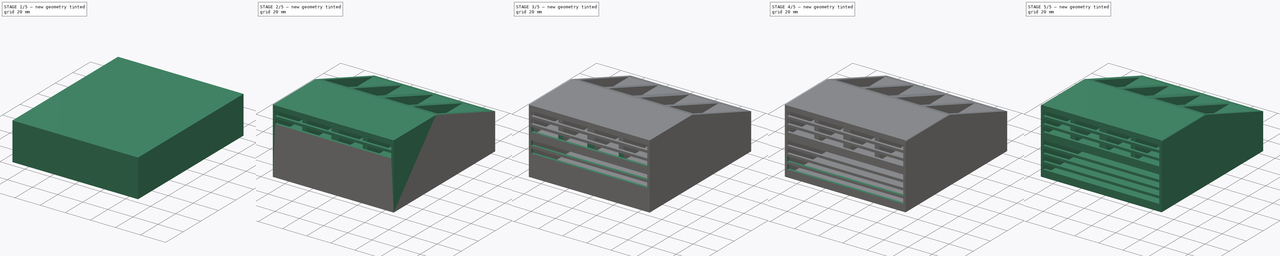
[diagram: build sequence overview — one tinted view per stage of 5, left to right]
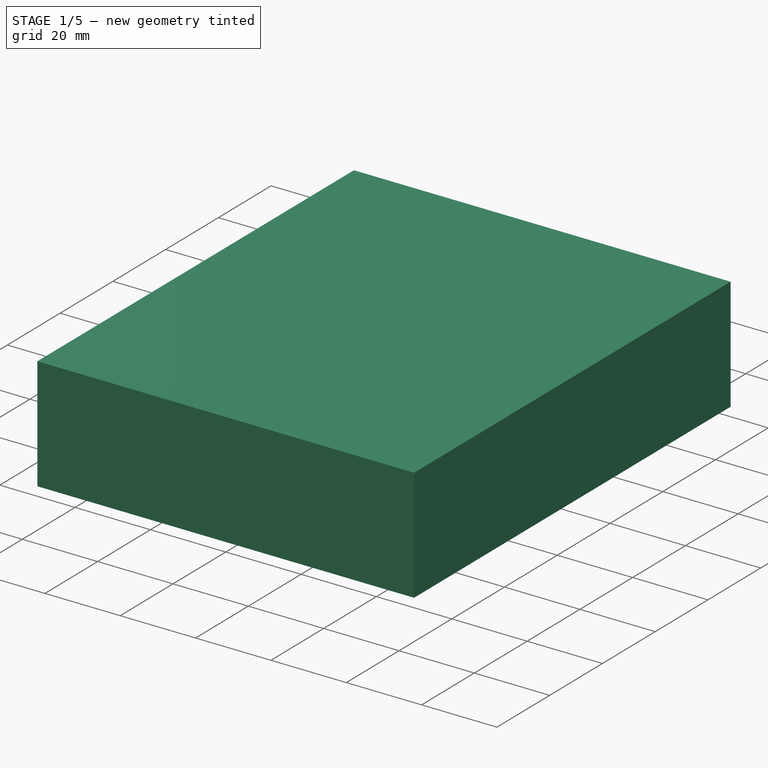
[diagram: stage 1 of 5 — iso view after this stage's code; geometry added in this stage tinted green]
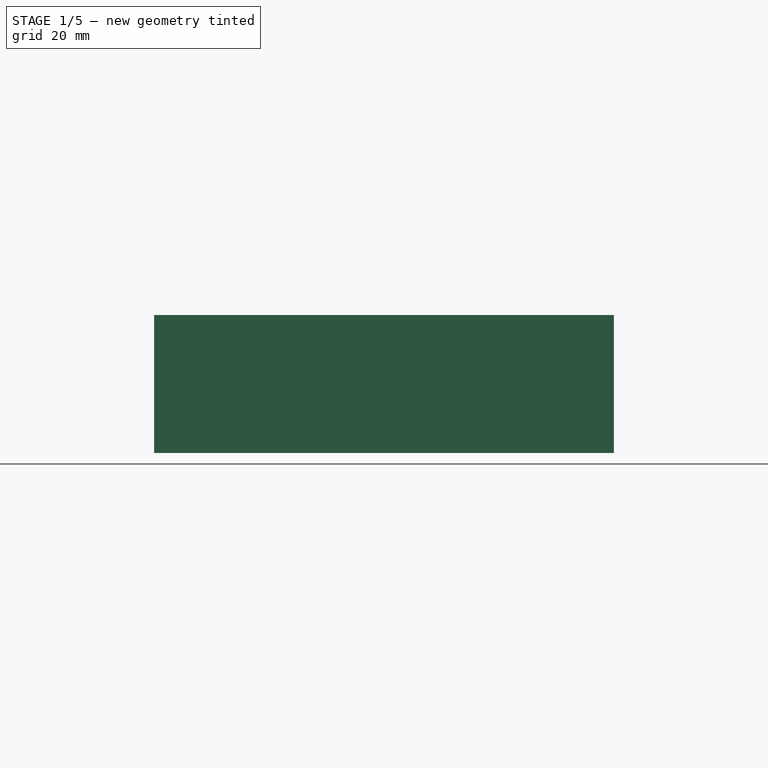
[diagram: stage 1 of 5 — front view after this stage's code; geometry added in this stage tinted green]
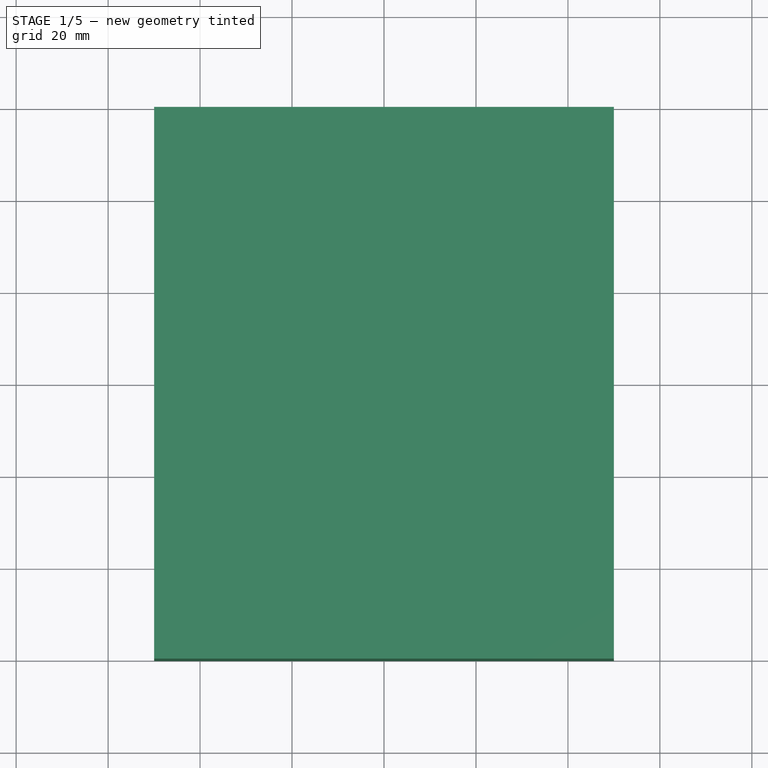
[diagram: stage 1 of 5 — top view after this stage's code; geometry added in this stage tinted green]
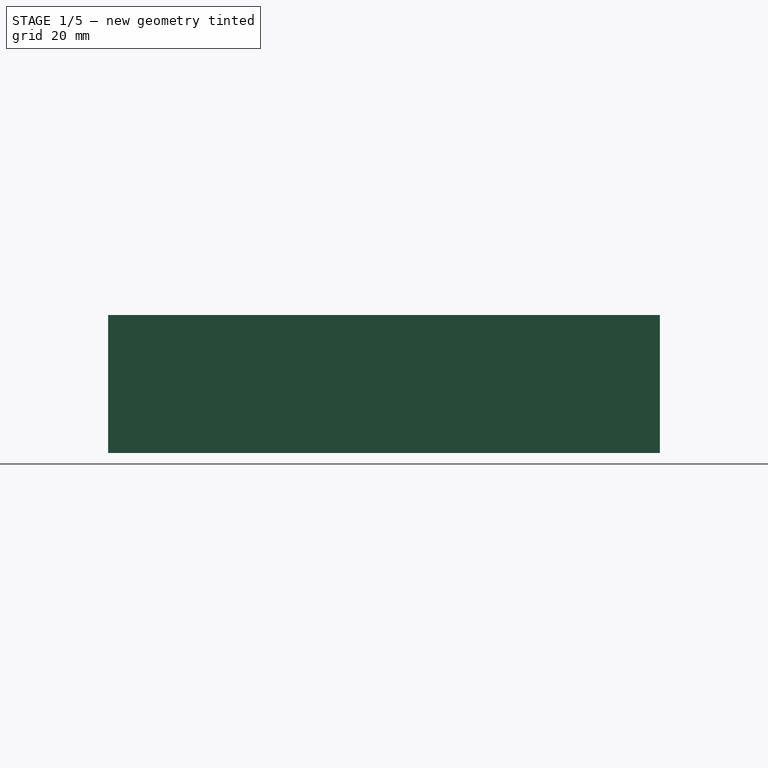
[diagram: stage 1 of 5 — right view after this stage's code; geometry added in this stage tinted green]
FCSTD DOCUMENT  (FreeCAD 0.19R24291 (Git))
Label: bathroom_box2
License: All rights reserved
LicenseURL: http://en.wikipedia.org/wiki/All_rights_reserved
objects: Sketcher::SketchObject×12, PartDesign::Pocket×10, PartDesign::Fillet×3, PartDesign::Pad×2, PartDesign::Chamfer×2, PartDesign::Body×1
note: 47 computed .brp shape members not serialized (recipe doc carries the construction recipe); baked Part::Feature solids carry a one-line shape summary decoded from their .brp

FEATURE [Sketcher::SketchObject] Sketch
  FullyConstrained = true
  MapMode = 5
  Support = -> [XY_Plane]
  sketch-geometry (4):
    g0: LineSegment StartX=-50 StartY=60 StartZ=0 EndX=50 EndY=60 EndZ=0
    g1: LineSegment StartX=50 StartY=60 StartZ=0 EndX=50 EndY=-60 EndZ=0
    g2: LineSegment StartX=50 StartY=-60 StartZ=0 EndX=-50 EndY=-60 EndZ=0
    g3: LineSegment StartX=-50 StartY=-60 StartZ=0 EndX=-50 EndY=60 EndZ=0
  constraints (10):
    c: Coincident(g0,g1)
    c: Coincident(g1,g2)
    c: Coincident(g2,g3)
    c: Coincident(g3,g0)
    c: Horizontal(g2)
    c: Vertical(g3)
    c: DistanceY(g1,g1) = 120
    c: DistanceX(g0,g0) = 100
    c: Symmetric(g1,g0,g-1)
    c: Symmetric(g0,g0,g-2)
FEATURE [PartDesign::Pad] Pad  label="Pad_main"
  Direction = (1,1,1)
  Length = 30
  Length2 = 100
  Profile = -> Sketch
  Refine = true
  Type = 0
FEATURE [Sketcher::SketchObject] Sketch001
  AttachmentOffset = pos=(0,0,58) rot=(0,0,1;0rad)
  ExternalGeometry = -> [Pad]
  FullyConstrained = true
  MapMode = 5
  Placement = pos=(0,-58,-1.29e-14) rot=(1,0,0;1.5708rad)
  Support = -> [XZ_Plane]
  sketch-geometry (4):
    g0: LineSegment StartX=-49 StartY=29 StartZ=0 EndX=49 EndY=29 EndZ=0
    g1: LineSegment StartX=49 StartY=29 StartZ=0 EndX=49 EndY=1 EndZ=0
    g2: LineSegment StartX=49 StartY=1 StartZ=0 EndX=-49 EndY=1 EndZ=0
    g3: LineSegment StartX=-49 StartY=1 StartZ=0 EndX=-49 EndY=29 EndZ=0
  constraints (11):
    c: Coincident(g0,g1)
    c: Coincident(g1,g2)
    c: Coincident(g2,g3)
    c: Coincident(g3,g0)
    c: Horizontal(g2)
    c: Vertical(g1)
    c: Vertical(g3)
    c: Symmetric(g0,g0,g-2)
    c: DistanceY(g0,g-3) = 1
    c: DistanceX(g0,g-3) = 1
    c: DistanceY(g-4,g1) = 1
FEATURE [PartDesign::Pocket] Pocket  label="Pocket_main"
  BaseFeature = -> Pad
  Length = 118
  Length2 = 100
  Profile = -> Sketch001
  Refine = true
  Type = 0
FEATURE [Sketcher::SketchObject] Sketch010
  FullyConstrained = true
  MapMode = 5
  Support = -> [XY_Plane]
  sketch-geometry (4):
    g0: LineSegment StartX=-3.5 StartY=46.0622 StartZ=0 EndX=3.5 EndY=46.0622 EndZ=0
    g1: LineSegment StartX=3.5 StartY=46.0622 StartZ=0 EndX=3.5 EndY=36.0622 EndZ=0
    g2: ArcOfCircle CenterX=0 CenterY=30 CenterZ=0 NormalX=0 NormalY=0 NormalZ=1 AngleXU=0 Radius=7 StartAngle=2.0944 EndAngle=7.33038
    g3: LineSegment StartX=-3.5 StartY=36.0622 StartZ=0 EndX=-3.5 EndY=46.0622 EndZ=0
  constraints (12):
    c: Coincident(g0,g1)
    c: Vertical(g1)
    c: Coincident(g2,g3)
    c: Coincident(g3,g0)
    c: Vertical(g3)
    c: Symmetric(g0,g0,g-2)
    c: DistanceX(g0,g0) = 7
    c: Coincident(g2,g1)
    c: PointOnObject(g2,g-2)
    c: Radius(g2) = 7
    c: DistanceY(g1,g0) = 10
    c: DistanceY(g-1,g2) = 30
FEATURE [PartDesign::Pocket] Pocket006  label="Pocket_hanger"
  BaseFeature = -> Pocket
  Length = 2
  Length2 = 100
  Profile = -> Sketch010
  Refine = true
  Reversed = true
  Type = 0
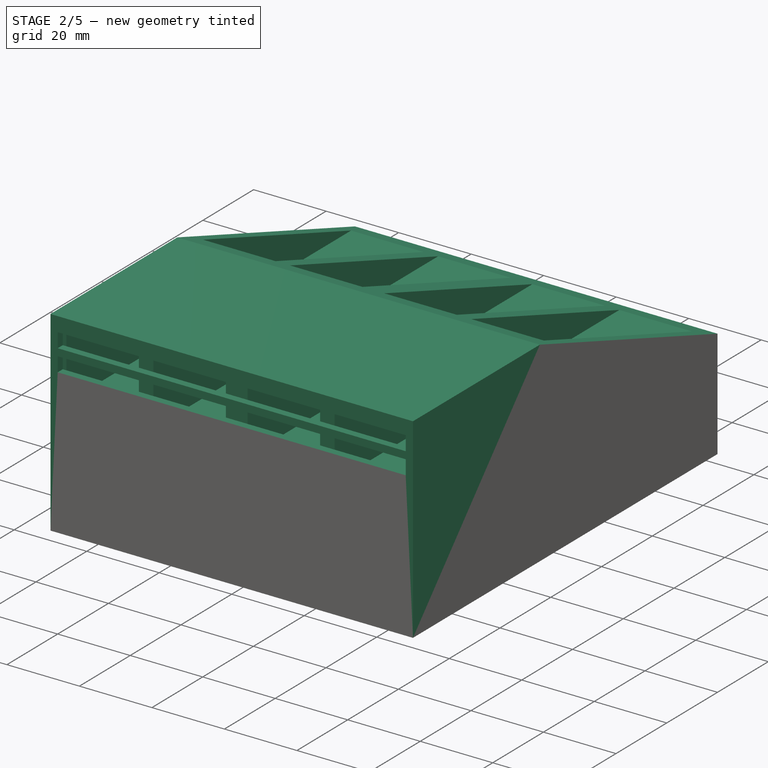
[diagram: stage 2 of 5 — iso view after this stage's code; geometry added in this stage tinted green]
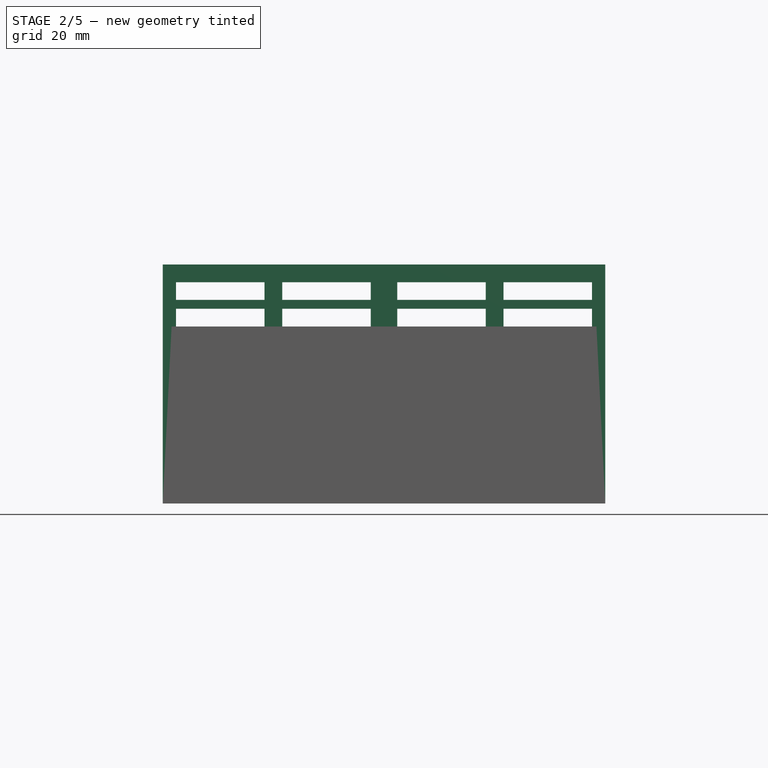
[diagram: stage 2 of 5 — front view after this stage's code; geometry added in this stage tinted green]
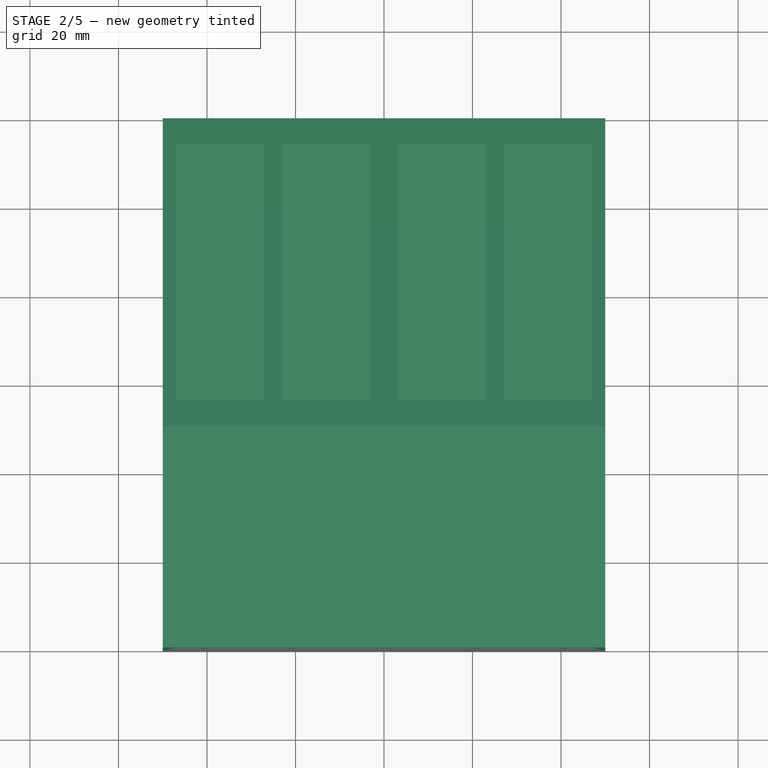
[diagram: stage 2 of 5 — top view after this stage's code; geometry added in this stage tinted green]
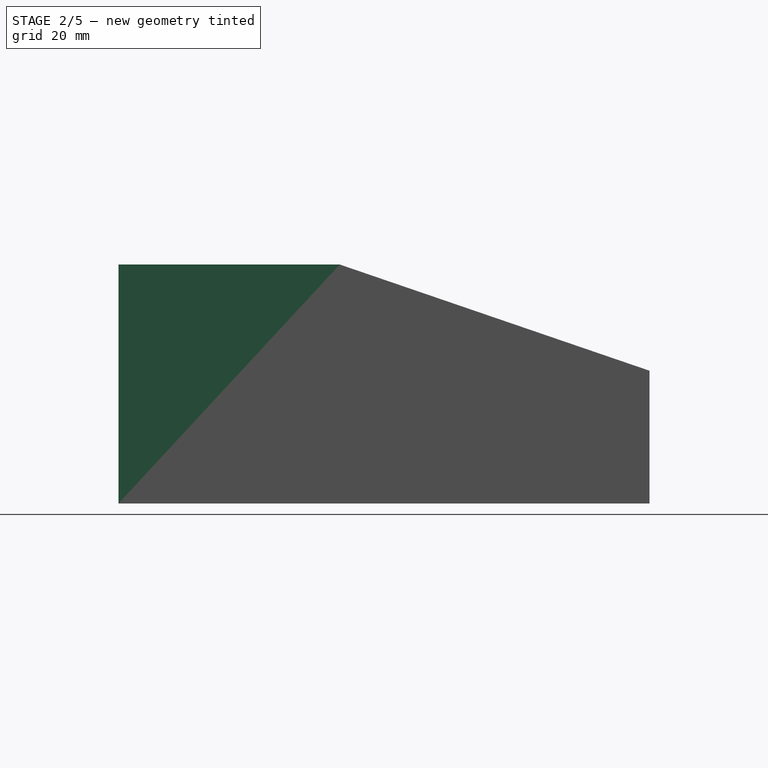
[diagram: stage 2 of 5 — right view after this stage's code; geometry added in this stage tinted green]
FEATURE [Sketcher::SketchObject] Sketch011
  AttachmentOffset = pos=(0,0,50) rot=(0,0,1;0rad)
  ExternalGeometry = -> [Pocket006]
  FullyConstrained = false
  MapMode = 5
  Placement = pos=(50,-1.11e-14,1.11e-14) rot=(0.57735,0.57735,0.57735;2.0944rad)
  Support = -> [YZ_Plane]
  sketch-geometry (4):
    g0: LineSegment StartX=60 StartY=30 StartZ=0 EndX=-60 EndY=30 EndZ=0
    g1: LineSegment StartX=-60 StartY=30 StartZ=0 EndX=-60 EndY=54 EndZ=0
    g2: LineSegment StartX=-60 StartY=54 StartZ=0 EndX=-10 EndY=54 EndZ=0
    g3: LineSegment StartX=-10 StartY=54 StartZ=0 EndX=60 EndY=30 EndZ=0
  constraints (8):
    c: Coincident(g0,g1)
    c: Vertical(g1)
    c: Coincident(g1,g2)
    c: Horizontal(g2)
    c: Coincident(g2,g3)
    c: Coincident(g3,g0)
    c: DistanceY(g1,g1) = 24
    c: DistanceX(g2,g2) = 50
FEATURE [PartDesign::Pad] Pad001  label="Pad_front"
  BaseFeature = -> Pocket006
  Direction = (1,1,1)
  Length = 100
  Length2 = 100
  Profile = -> Sketch011
  Refine = true
  Reversed = true
  Type = 0
FEATURE [Sketcher::SketchObject] Sketch012
  AttachmentOffset = pos=(0,0,58) rot=(0,0,1;0rad)
  ExternalGeometry = -> [Pad001]
  FullyConstrained = false
  MapMode = 5
  Placement = pos=(0,-58,-1.29e-14) rot=(1,0,0;1.5708rad)
  Support = -> [XZ_Plane]
  sketch-geometry (16):
    g0: LineSegment StartX=47 StartY=52 StartZ=0 EndX=27 EndY=52 EndZ=0
    g1: LineSegment StartX=27 StartY=52 StartZ=0 EndX=27 EndY=32 EndZ=0
    g2: LineSegment StartX=27 StartY=32 StartZ=0 EndX=47 EndY=32 EndZ=0
    g3: LineSegment StartX=47 StartY=32 StartZ=0 EndX=47 EndY=52 EndZ=0
    g4: LineSegment StartX=23 StartY=52 StartZ=0 EndX=3 EndY=52 EndZ=0
    g5: LineSegment StartX=3 StartY=52 StartZ=0 EndX=3 EndY=32 EndZ=0
    g6: LineSegment StartX=3 StartY=32 StartZ=0 EndX=23 EndY=32 EndZ=0
    g7: LineSegment StartX=23 StartY=32 StartZ=0 EndX=23 EndY=52 EndZ=0
    g8: LineSegment StartX=-23 StartY=52 StartZ=0 EndX=-3 EndY=52 EndZ=0
    g9: LineSegment StartX=-3 StartY=52 StartZ=0 EndX=-3 EndY=32 EndZ=0
    g10: LineSegment StartX=-3 StartY=32 StartZ=0 EndX=-23 EndY=32 EndZ=0
    g11: LineSegment StartX=-23 StartY=32 StartZ=0 EndX=-23 EndY=52 EndZ=0
    g12: LineSegment StartX=-47 StartY=52 StartZ=0 EndX=-27 EndY=52 EndZ=0
    g13: LineSegment StartX=-27 StartY=52 StartZ=0 EndX=-27 EndY=32 EndZ=0
    g14: LineSegment StartX=-27 StartY=32 StartZ=0 EndX=-47 EndY=32 EndZ=0
    g15: LineSegment StartX=-47 StartY=32 StartZ=0 EndX=-47 EndY=52 EndZ=0
  constraints (45):
    c: Coincident(g0,g1)
    c: Coincident(g2,g3)
    c: Coincident(g3,g0)
    c: Horizontal(g0)
    c: Horizontal(g2)
    c: Vertical(g1)
    c: Vertical(g3)
    c: Coincident(g4,g5)
    c: Coincident(g5,g6)
    c: Coincident(g6,g7)
    c: Coincident(g7,g4)
    c: Horizontal(g4)
    c: Horizontal(g6)
    c: Vertical(g5)
    c: Vertical(g7)
    c: Equal(g7,g1)
    c: Equal(g0,g4)
    c: Horizontal(g4,g0)
    c: Coincident(g2,g1)
    c: Coincident(g8,g9)
    c: Coincident(g9,g10)
    c: Coincident(g10,g11)
    c: Coincident(g11,g8)
    c: Horizontal(g8)
    c: Horizontal(g10)
    c: Vertical(g9)
    c: Vertical(g11)
    c: Coincident(g12,g13)
    c: Coincident(g13,g14)
    c: Coincident(g14,g15)
    c: Coincident(g15,g12)
    c: Horizontal(g12)
    c: Horizontal(g14)
    c: Vertical(g13)
    c: Vertical(g15)
    c: Equal(g13,g11)
    c: Equal(g9,g5)
    c: Equal(g10,g14)
    c: Equal(g10,g6)
    c: Horizontal(g8,g4)
    c: Horizontal(g12,g8)
    c: DistanceX(g13,g10) = 4
    c: DistanceX(g6,g1) = 4
    c: DistanceX(g0,g0) = 20
    c: DistanceY(g3,g3) = 20
FEATURE [PartDesign::Pocket] Pocket011  label="Pocket_front"
  BaseFeature = -> Pad001
  Length = 118
  Length2 = 100
  Profile = -> Sketch012
  Refine = true
  Type = 0
FEATURE [Sketcher::SketchObject] Sketch007
  AttachmentOffset = pos=(0,0,60) rot=(0,0,1;0rad)
  ExternalGeometry = -> [Pocket011]
  FullyConstrained = true
  MapMode = 5
  Placement = pos=(0,-60,-1.33e-14) rot=(1,0,0;1.5708rad)
  Support = -> [XZ_Plane]
  sketch-geometry (4):
    g0: LineSegment StartX=-48 StartY=16 StartZ=0 EndX=48 EndY=16 EndZ=0
    g1: LineSegment StartX=48 StartY=16 StartZ=0 EndX=48 EndY=12 EndZ=0
    g2: LineSegment StartX=48 StartY=12 StartZ=0 EndX=-48 EndY=12 EndZ=0
    g3: LineSegment StartX=-48 StartY=12 StartZ=0 EndX=-48 EndY=16 EndZ=0
  constraints (12):
    c: Coincident(g0,g1)
    c: Coincident(g1,g2)
    c: Coincident(g2,g3)
    c: Coincident(g3,g0)
    c: Horizontal(g0)
    c: Horizontal(g2)
    c: Vertical(g1)
    c: Vertical(g3)
    c: DistanceY(g1,g1) = 4
    c: DistanceX(g2,g2) = 96
    c: DistanceY(g-3,g1) = 12
    c: DistanceX(g1,g-3) = 2
FEATURE [Sketcher::SketchObject] Sketch008
  AttachmentOffset = pos=(0,0,60) rot=(0,0,1;0rad)
  ExternalGeometry = -> [Pocket011]
  FullyConstrained = true
  MapMode = 5
  Placement = pos=(0,-60,-1.33e-14) rot=(1,0,0;1.5708rad)
  Support = -> [XZ_Plane]
  sketch-geometry (4):
    g0: LineSegment StartX=-48 StartY=10 StartZ=0 EndX=48 EndY=10 EndZ=0
    g1: LineSegment StartX=48 StartY=10 StartZ=0 EndX=48 EndY=6 EndZ=0
    g2: LineSegment StartX=48 StartY=6 StartZ=0 EndX=-48 EndY=6 EndZ=0
    g3: LineSegment StartX=-48 StartY=6 StartZ=0 EndX=-48 EndY=10 EndZ=0
  constraints (12):
    c: Coincident(g0,g1)
    c: Coincident(g1,g2)
    c: Coincident(g2,g3)
    c: Coincident(g3,g0)
    c: Horizontal(g0)
    c: Horizontal(g2)
    c: Vertical(g1)
    c: Vertical(g3)
    c: DistanceY(g1,g1) = 4
    c: DistanceX(g2,g2) = 96
    c: DistanceY(g-3,g1) = 6
    c: DistanceX(g1,g-3) = 2
FEATURE [Sketcher::SketchObject] Sketch003
  AttachmentOffset = pos=(0,0,60) rot=(0,0,1;0rad)
  ExternalGeometry = -> [Sketch008,Pocket011]
  FullyConstrained = false
  MapMode = 5
  Placement = pos=(0,-60,-1.33e-14) rot=(1,0,0;1.5708rad)
  Support = -> [XZ_Plane]
  sketch-geometry (4):
    g0: LineSegment StartX=-47.9862 StartY=22 StartZ=0 EndX=48.0138 EndY=22 EndZ=0
    g1: LineSegment StartX=48.0138 StartY=22 StartZ=0 EndX=48.0138 EndY=18 EndZ=0
    g2: LineSegment StartX=48.0138 StartY=18 StartZ=0 EndX=-47.9862 EndY=18 EndZ=0
    g3: LineSegment StartX=-47.9862 StartY=18 StartZ=0 EndX=-47.9862 EndY=22 EndZ=0
  constraints (11):
    c: Coincident(g0,g1)
    c: Coincident(g1,g2)
    c: Coincident(g2,g3)
    c: Coincident(g3,g0)
    c: Horizontal(g0)
    c: Horizontal(g2)
    c: Vertical(g1)
    c: Vertical(g3)
    c: DistanceY(g1,g1) = 4
    c: DistanceX(g2,g2) = 96
    c: DistanceY(g-4,g1) = 18
FEATURE [Sketcher::SketchObject] Sketch009
  AttachmentOffset = pos=(0,0,60) rot=(0,0,1;0rad)
  ExternalGeometry = -> [Pocket011]
  FullyConstrained = true
  MapMode = 5
  Placement = pos=(0,-60,-1.33e-14) rot=(1,0,0;1.5708rad)
  Support = -> [XZ_Plane]
  sketch-geometry (4):
    g0: LineSegment StartX=-48 StartY=28 StartZ=0 EndX=48 EndY=28 EndZ=0
    g1: LineSegment StartX=48 StartY=28 StartZ=0 EndX=48 EndY=24 EndZ=0
    g2: LineSegment StartX=48 StartY=24 StartZ=0 EndX=-48 EndY=24 EndZ=0
    g3: LineSegment StartX=-48 StartY=24 StartZ=0 EndX=-48 EndY=28 EndZ=0
  constraints (12):
    c: Coincident(g0,g1)
    c: Coincident(g1,g2)
    c: Coincident(g2,g3)
    c: Coincident(g3,g0)
    c: Horizontal(g0)
    c: Horizontal(g2)
    c: Vertical(g1)
    c: Vertical(g3)
    c: DistanceY(g1,g1) = 4
    c: DistanceX(g2,g2) = 96
    c: DistanceX(g1,g-3) = 2
    c: DistanceY(g-3,g1) = 24
FEATURE [Sketcher::SketchObject] Sketch013
  AttachmentOffset = pos=(0,0,60) rot=(0,0,1;0rad)
  ExternalGeometry = -> [Pocket011]
  FullyConstrained = true
  MapMode = 5
  Placement = pos=(0,-60,-1.33e-14) rot=(1,0,0;1.5708rad)
  Support = -> [XZ_Plane]
  sketch-geometry (4):
    g0: LineSegment StartX=-48 StartY=38 StartZ=0 EndX=48 EndY=38 EndZ=0
    g1: LineSegment StartX=48 StartY=38 StartZ=0 EndX=48 EndY=34 EndZ=0
    g2: LineSegment StartX=48 StartY=34 StartZ=0 EndX=-48 EndY=34 EndZ=0
    g3: LineSegment StartX=-48 StartY=34 StartZ=0 EndX=-48 EndY=38 EndZ=0
  constraints (12):
    c: Coincident(g0,g1)
    c: Coincident(g1,g2)
    c: Coincident(g2,g3)
    c: Coincident(g3,g0)
    c: Horizontal(g0)
    c: Horizontal(g2)
    c: Vertical(g1)
    c: Vertical(g3)
    c: DistanceY(g1,g1) = 4
    c: DistanceX(g2,g2) = 96
    c: DistanceX(g1,g-3) = 2
    c: DistanceY(g-3,g1) = 34
FEATURE [Sketcher::SketchObject] Sketch014
  AttachmentOffset = pos=(0,0,60) rot=(0,0,1;0rad)
  ExternalGeometry = -> [Pocket011]
  FullyConstrained = true
  MapMode = 5
  Placement = pos=(0,-60,-1.33e-14) rot=(1,0,0;1.5708rad)
  Support = -> [XZ_Plane]
  sketch-geometry (4):
    g0: LineSegment StartX=-48 StartY=44 StartZ=0 EndX=48 EndY=44 EndZ=0
    g1: LineSegment StartX=48 StartY=44 StartZ=0 EndX=48 EndY=40 EndZ=0
    g2: LineSegment StartX=48 StartY=40 StartZ=0 EndX=-48 EndY=40 EndZ=0
    g3: LineSegment StartX=-48 StartY=40 StartZ=0 EndX=-48 EndY=44 EndZ=0
  constraints (12):
    c: Coincident(g0,g1)
    c: Coincident(g1,g2)
    c: Coincident(g2,g3)
    c: Coincident(g3,g0)
    c: Horizontal(g0)
    c: Horizontal(g2)
    c: Vertical(g1)
    c: Vertical(g3)
    c: DistanceY(g1,g1) = 4
    c: DistanceX(g2,g2) = 96
    c: DistanceX(g1,g-3) = 2
    c: DistanceY(g-3,g1) = 40
FEATURE [Sketcher::SketchObject] Sketch016
  AttachmentOffset = pos=(0,0,60) rot=(0,0,1;0rad)
  ExternalGeometry = -> [Pocket011]
  FullyConstrained = true
  MapMode = 5
  Placement = pos=(0,-60,-1.33e-14) rot=(1,0,0;1.5708rad)
  Support = -> [XZ_Plane]
  sketch-geometry (4):
    g0: LineSegment StartX=-48 StartY=50 StartZ=0 EndX=48 EndY=50 EndZ=0
    g1: LineSegment StartX=48 StartY=50 StartZ=0 EndX=48 EndY=46 EndZ=0
    g2: LineSegment StartX=48 StartY=46 StartZ=0 EndX=-48 EndY=46 EndZ=0
    g3: LineSegment StartX=-48 StartY=46 StartZ=0 EndX=-48 EndY=50 EndZ=0
  constraints (12):
    c: Coincident(g0,g1)
    c: Coincident(g1,g2)
    c: Coincident(g2,g3)
    c: Coincident(g3,g0)
    c: Horizontal(g0)
    c: Horizontal(g2)
    c: Vertical(g1)
    c: Vertical(g3)
    c: DistanceY(g1,g1) = 4
    c: DistanceX(g2,g2) = 96
    c: DistanceX(g1,g-3) = 2
    c: DistanceY(g-3,g1) = 46
FEATURE [PartDesign::Pocket] Pocket012  label="Pocket_bottom_01"
  BaseFeature = -> Pocket011
  Length = 2
  Length2 = 100
  Profile = -> Sketch016
  Refine = true
  Type = 0
FEATURE [PartDesign::Pocket] Pocket013  label="Pocket_bottom_02"
  BaseFeature = -> Pocket012
  Length = 2
  Length2 = 100
  Profile = -> Sketch014
  Refine = true
  Type = 0
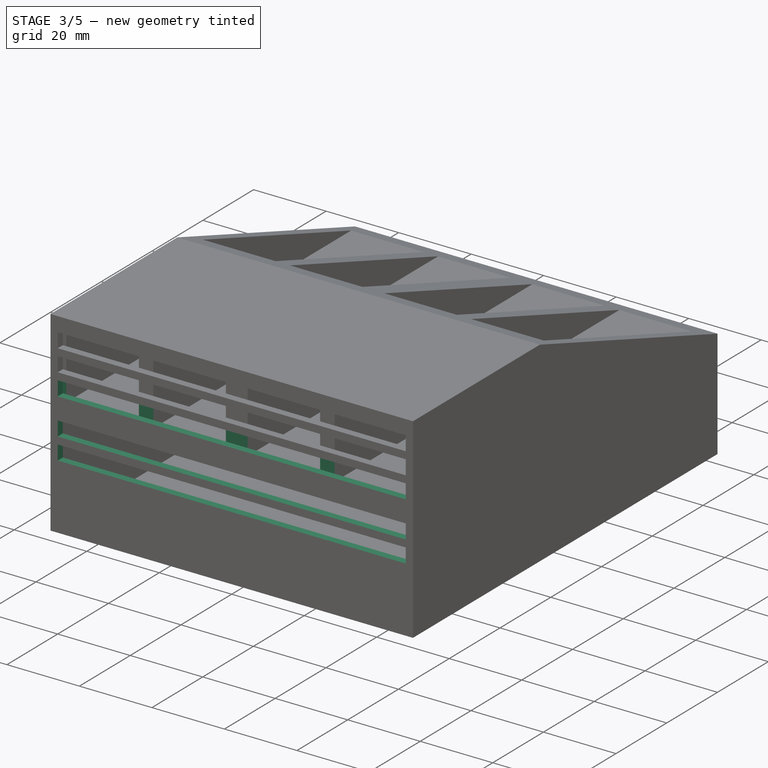
[diagram: stage 3 of 5 — iso view after this stage's code; geometry added in this stage tinted green]
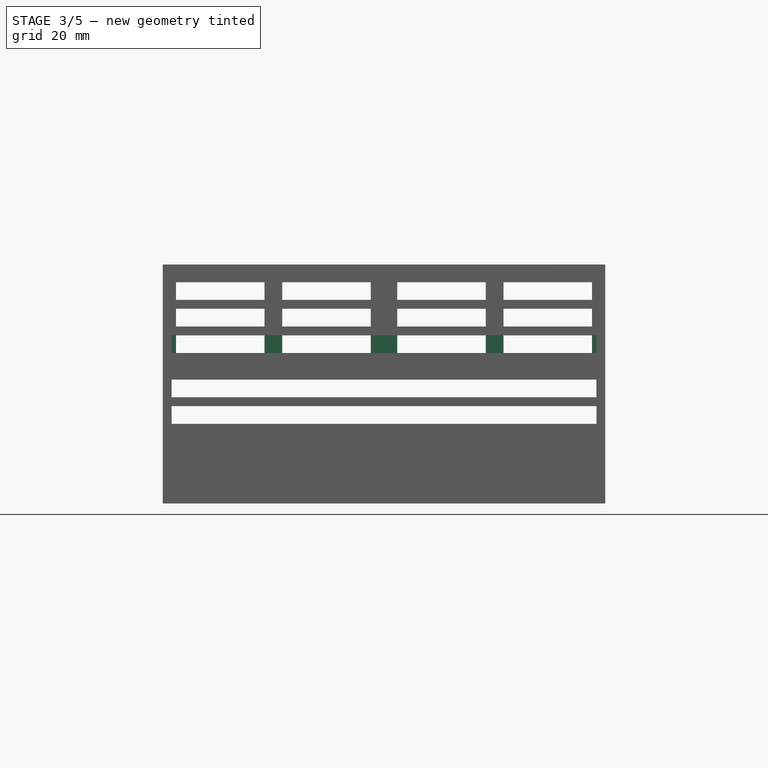
[diagram: stage 3 of 5 — front view after this stage's code; geometry added in this stage tinted green]
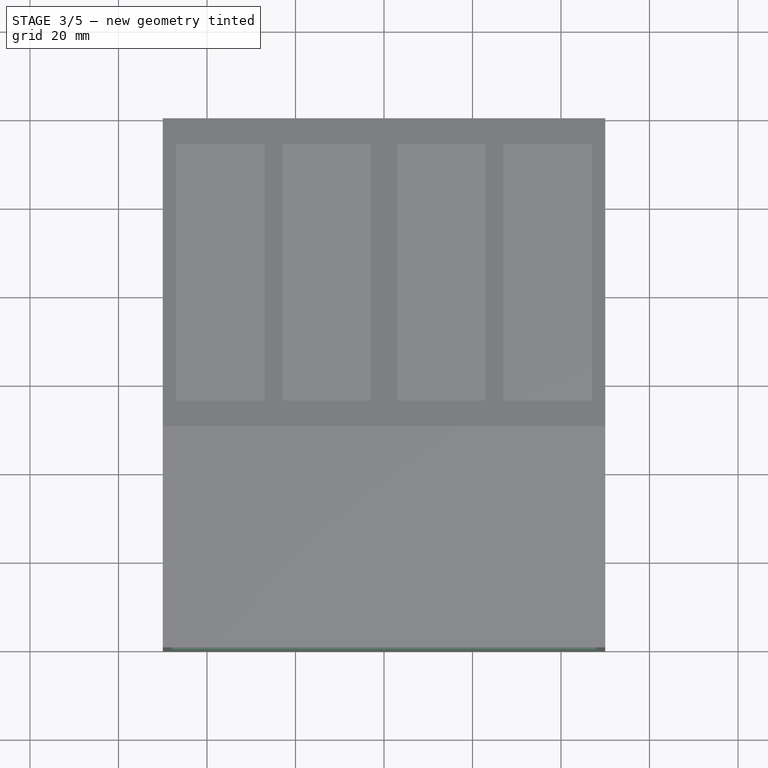
[diagram: stage 3 of 5 — top view after this stage's code; geometry added in this stage tinted green]
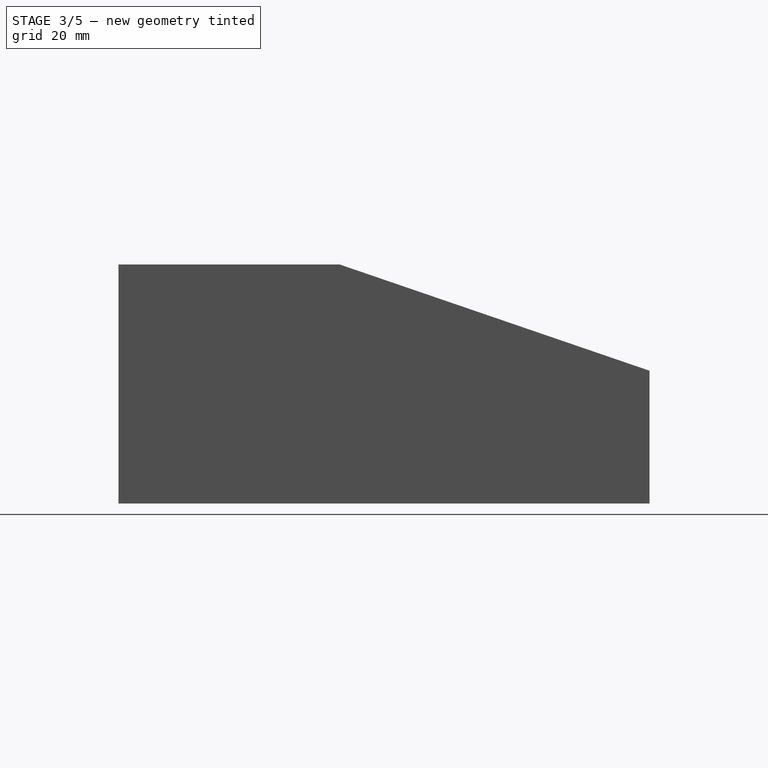
[diagram: stage 3 of 5 — right view after this stage's code; geometry added in this stage tinted green]
FEATURE [PartDesign::Pocket] Pocket014  label="Pocket_bottom_03"
  BaseFeature = -> Pocket013
  Length = 2
  Length2 = 100
  Profile = -> Sketch013
  Refine = true
  Type = 0
FEATURE [PartDesign::Pocket] Pocket015  label="Pocket_bottom_04"
  BaseFeature = -> Pocket014
  Length = 2
  Length2 = 100
  Profile = -> Sketch009
  Refine = true
  Type = 0
FEATURE [PartDesign::Pocket] Pocket016  label="Pocket_bottom_05"
  BaseFeature = -> Pocket015
  Length = 2
  Length2 = 100
  Profile = -> Sketch003
  Refine = true
  Type = 0
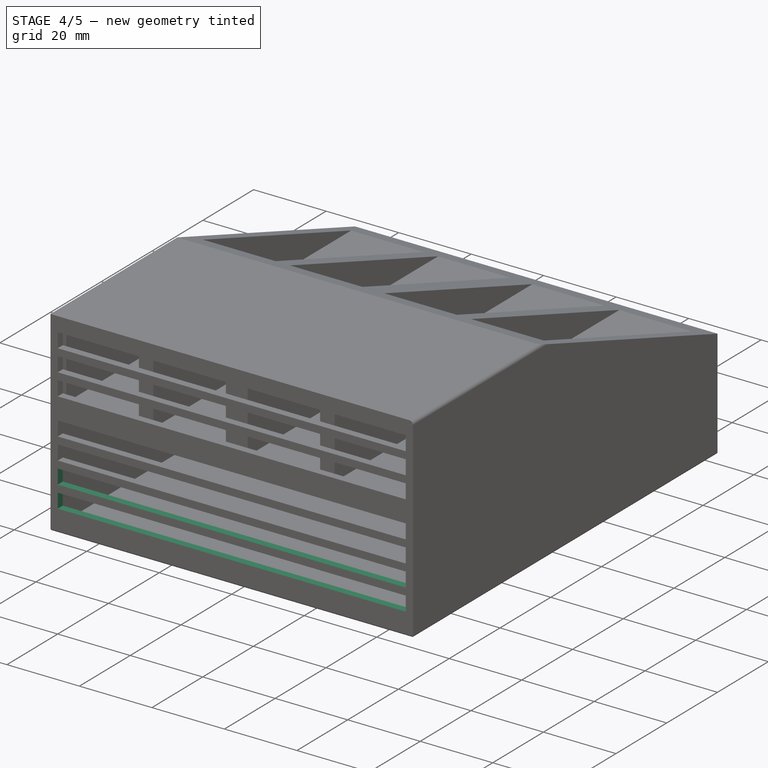
[diagram: stage 4 of 5 — iso view after this stage's code; geometry added in this stage tinted green]
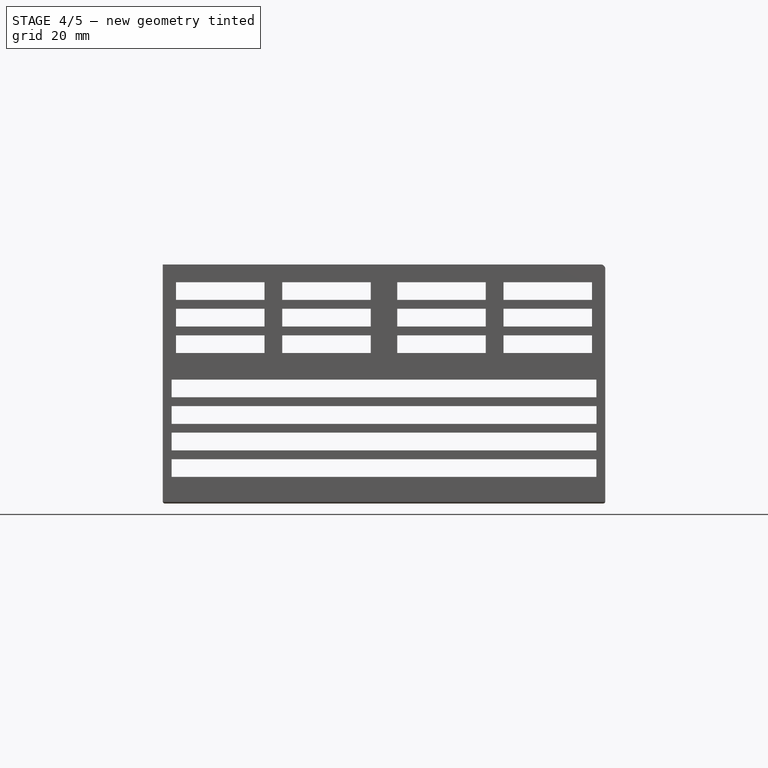
[diagram: stage 4 of 5 — front view after this stage's code; geometry added in this stage tinted green]
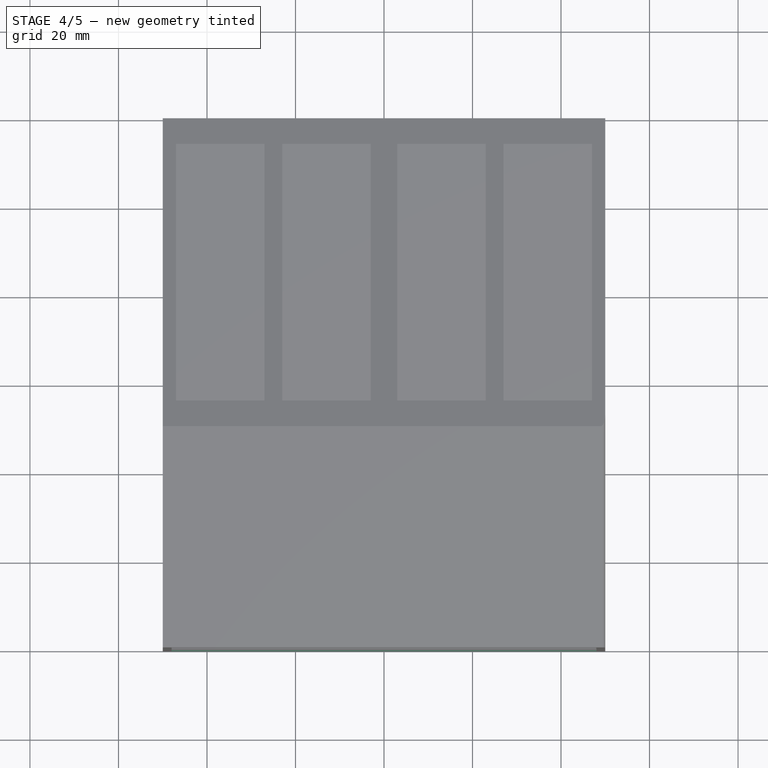
[diagram: stage 4 of 5 — top view after this stage's code; geometry added in this stage tinted green]
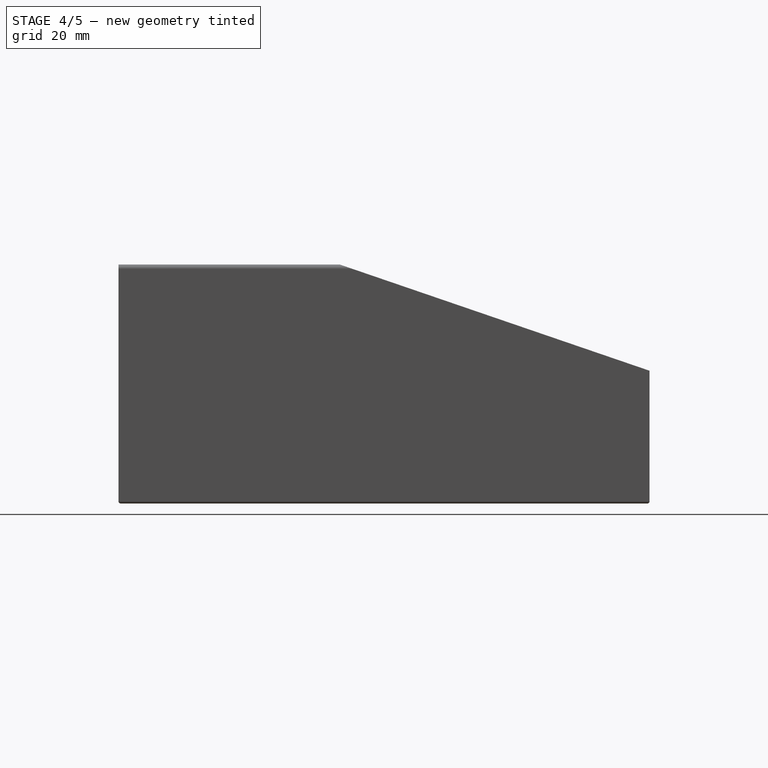
[diagram: stage 4 of 5 — right view after this stage's code; geometry added in this stage tinted green]
FEATURE [PartDesign::Pocket] Pocket017  label="Pocket_bottom_06"
  BaseFeature = -> Pocket016
  Length = 2
  Length2 = 100
  Profile = -> Sketch007
  Refine = true
  Type = 0
FEATURE [PartDesign::Pocket] Pocket018  label="Pocket_bottom_07"
  BaseFeature = -> Pocket017
  Length = 2
  Length2 = 100
  Profile = -> Sketch008
  Refine = true
  Type = 0
FEATURE [PartDesign::Fillet] Fillet
  Base = -> Pocket018 [Edge14,Edge12,Edge13,Edge2]
  BaseFeature = -> Pocket018
  Radius = 0.5
  Refine = true
  SupportTransform = false
FEATURE [PartDesign::Fillet] Fillet001
  Base = -> Fillet [Edge36]
  BaseFeature = -> Fillet
  Radius = 1
  Refine = true
  SupportTransform = false
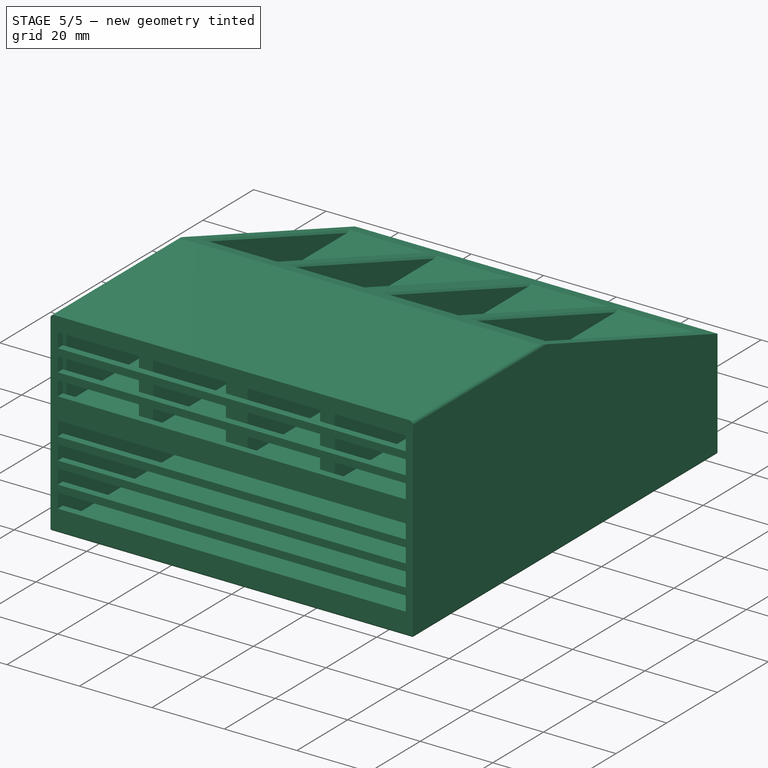
[diagram: stage 5 of 5 — iso view after this stage's code; geometry added in this stage tinted green]
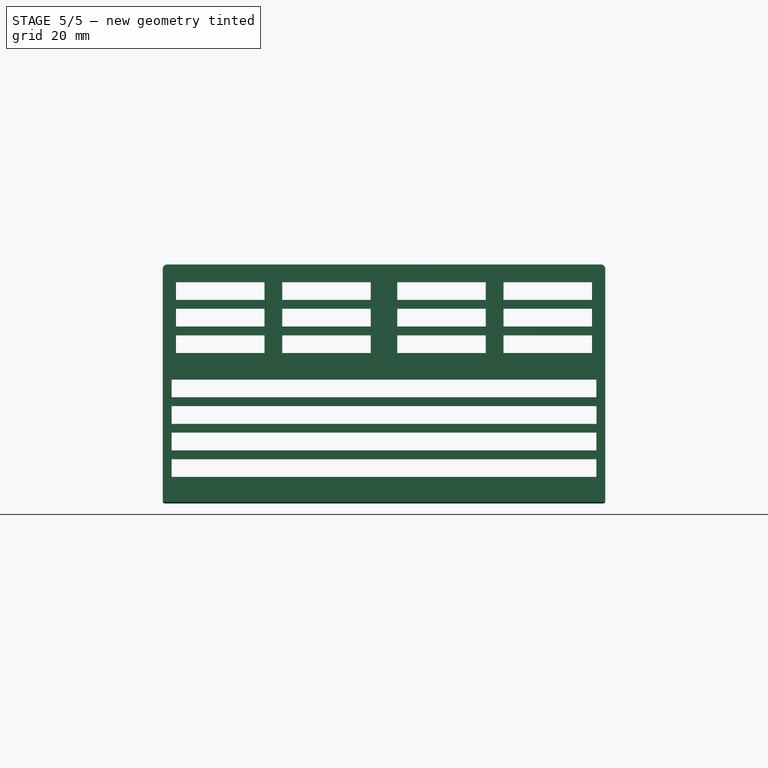
[diagram: stage 5 of 5 — front view after this stage's code; geometry added in this stage tinted green]
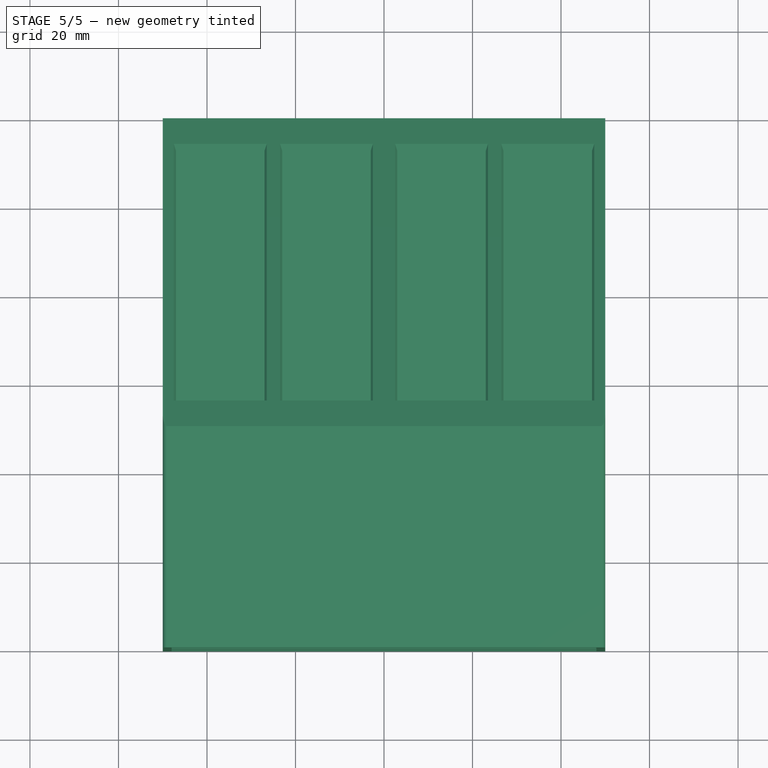
[diagram: stage 5 of 5 — top view after this stage's code; geometry added in this stage tinted green]
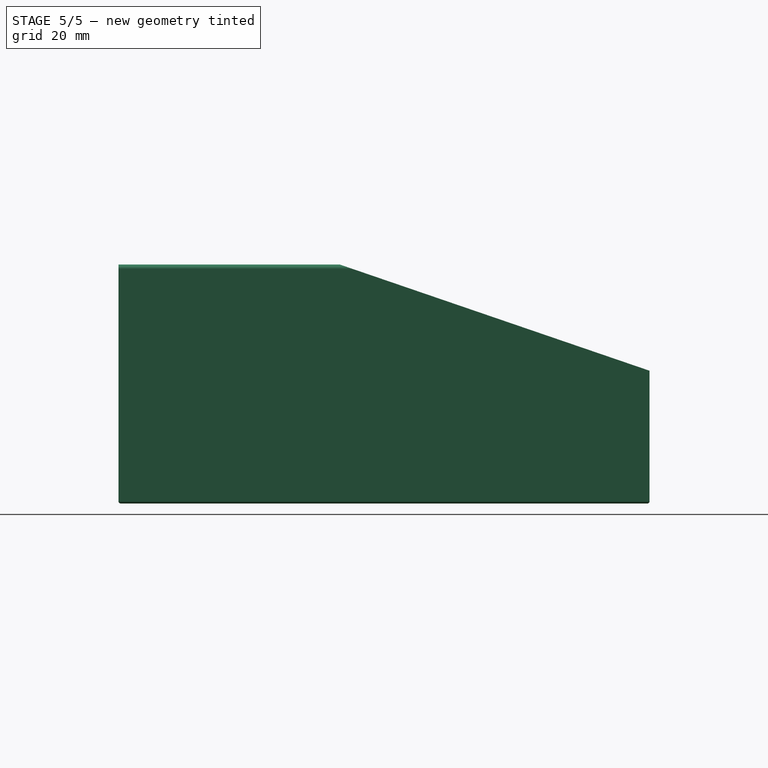
[diagram: stage 5 of 5 — right view after this stage's code; geometry added in this stage tinted green]
FEATURE [PartDesign::Fillet] Fillet002
  Base = -> Fillet001 [Edge24]
  BaseFeature = -> Fillet001
  Radius = 1
  Refine = true
  SupportTransform = false
FEATURE [PartDesign::Chamfer] Chamfer
  Angle = 45
  Base = -> Fillet002 [Edge22,Edge20,Edge18,Edge16,Edge13,Edge11,Edge9,Edge7]
  BaseFeature = -> Fillet002
  ChamferType = 0
  FlipDirection = false
  Refine = true
  Size = 0.5
  Size2 = 1
  SupportTransform = false
FEATURE [PartDesign::Chamfer] Chamfer001
  Angle = 45
  Base = -> Chamfer [Edge167,Edge166,Edge165]
  BaseFeature = -> Chamfer
  ChamferType = 0
  FlipDirection = false
  Refine = true
  Size = 0.5
  Size2 = 1
  SupportTransform = false
FEATURE [PartDesign::Body] Body
  Group = -> [Sketch,Pad,Sketch001,Pocket,Sketch003,Sketch007,Sketch008,Sketch009,Sketch010,Pocket006,Sketch011,Pad001,Sketch012,Sketch013,Sketch014,Pocket011,Sketch016,Pocket012,Pocket013,Pocket014,Pocket015,Pocket016,Pocket017,Pocket018,Fillet,Fillet001,Fillet002,Chamfer,Chamfer001]
  Origin = -> Origin
  Tip = -> Chamfer001
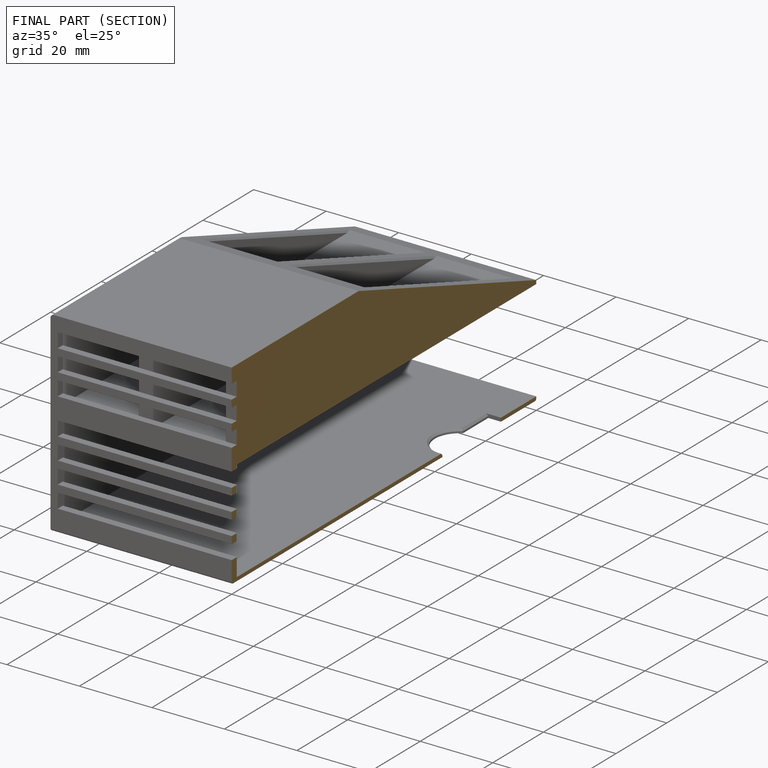
[diagram: finished part — half-section view (interior)]
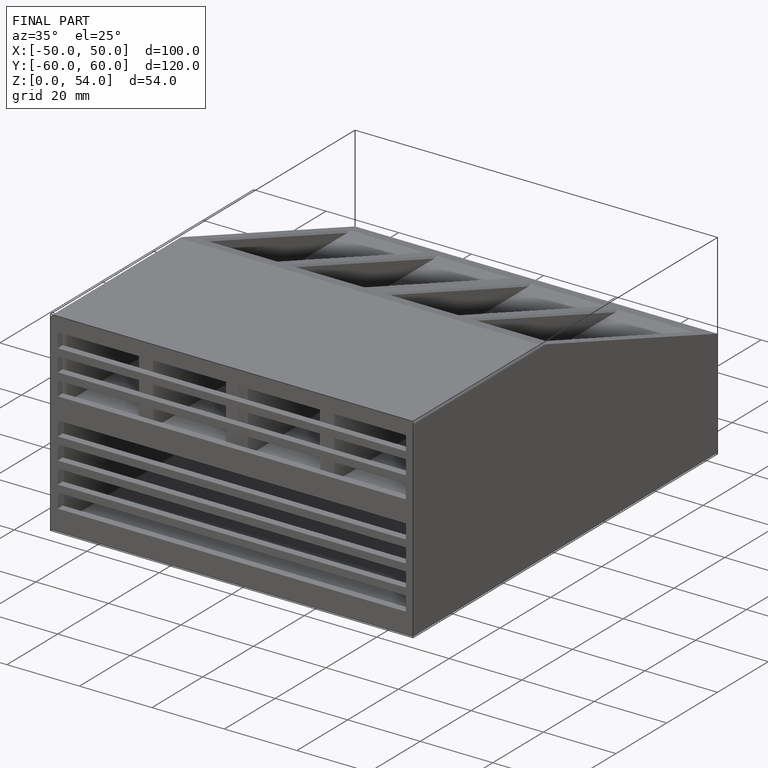
[diagram: finished part — iso view with bounding-box wireframe]
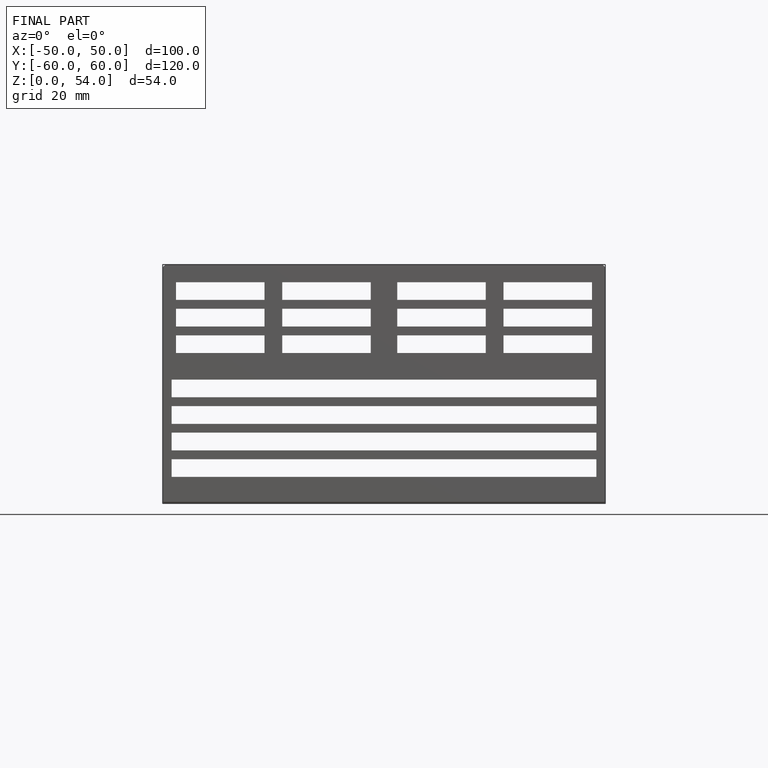
[diagram: finished part — front view with bounding-box wireframe]
